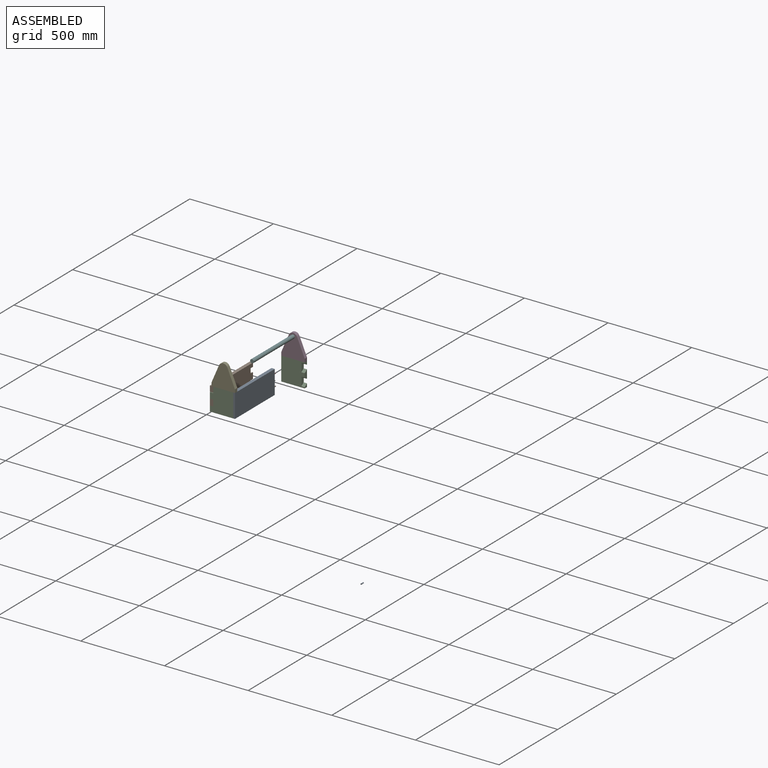
[diagram: assembled view]
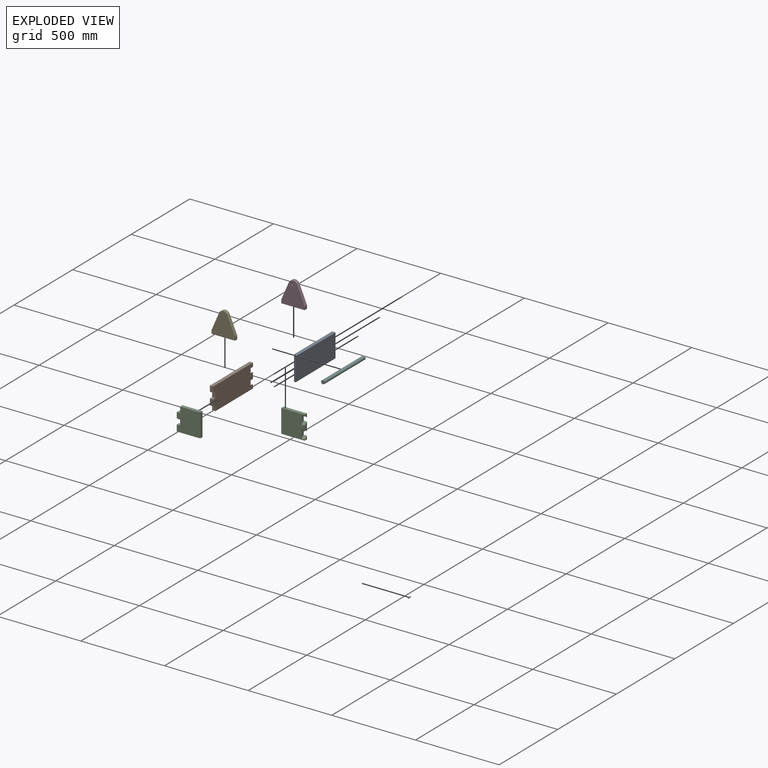
[diagram: exploded view]
GUIDED TOUR — MATED ASSEMBLY (Onshape document f731a02bd5e9c992d7287a58, AutoMate assembly f731a02bd5e9c992d7287a58_3853195bb8e3465ea0b610a6_fbe72c8abadcbdca8d0ad2a1_default)

This assembly has 11 components, labeled P0..P10 below (a component is one placed occurrence of a part; the same part can appear more than once), held together by 8 mates. A mate is a constraint between two components; its type names the relative motion it leaves free:
  FASTENED — locks the two components together rigidly (no relative motion).
Axis/direction vectors are unit vectors and 'through' points are millimeter coordinates, both in the assembly's world frame.

MATES
  1. FASTENED "Fastened 7": P6 <-> P0, direction (0.000, -1.000, 0.000) through (-1562.97, 940.39, 246.42) mm
  2. FASTENED "Fastened 8": P1 <-> P2, direction (0.000, 0.000, 1.000) through (-1692.97, 615.39, 246.42) mm
  3. FASTENED "Fastened 4": P9 <-> P0, direction (0.000, -1.000, 0.000) through (-1562.97, 945.39, 214.05) mm
  4. FASTENED "Fastened 1": P0 <-> P2, direction (-1.000, 0.000, 0.000) through (-1562.97, 615.39, 246.42) mm
  5. FASTENED "Fastened 6": P5 <-> P3, direction (0.000, 1.000, 0.000) through (-1146.64, 520.46, 762.72) mm
  6. FASTENED "Fastened 3": P7 <-> P0, direction (0.000, -1.000, 0.000) through (-1562.97, 945.39, 284.05) mm
  7. FASTENED "Fastened 5": P3 <-> P10, direction (0.000, 0.000, -1.000) through (-1146.64, 530.46, 641.14) mm
  8. FASTENED "Fastened 2": P4 <-> P2, direction (0.000, 0.000, -1.000) through (-1622.97, 615.39, 316.42) mm

ASSEMBLY ORDER
  1. P1 — the base component [order verified]
  2. P2 [order verified]
  3. P0 [order verified]
  4. P9 [order verified]
  5. P6 [order verified]
  6. P7 [order verified]
  7. P4 [order verified]
  8. P10 [order verified]
  9. P3 [order verified]
  10. P5 [order verified]
  11. P8 [order verified]
Order-tag legend:
  [order verified] — this step's position reverses a verified removal order: the component was checked to insert without passing through the ones already placed.

Of the 11 components, 9 carry the full construction recipe — the FeatureScript program that regenerates the part's solid from scratch; the rest are supplied as boundary geometry only.
Each toured component is shown spotlighted twice — in the assembled view, then in the exploded view, where a leader line traces a displaced component back to its assembled socket (saturated green if recipe-attached, orange if geometry-only; every other component desaturated gray) — followed by its recipe or geometry summary and the mates that hold it.
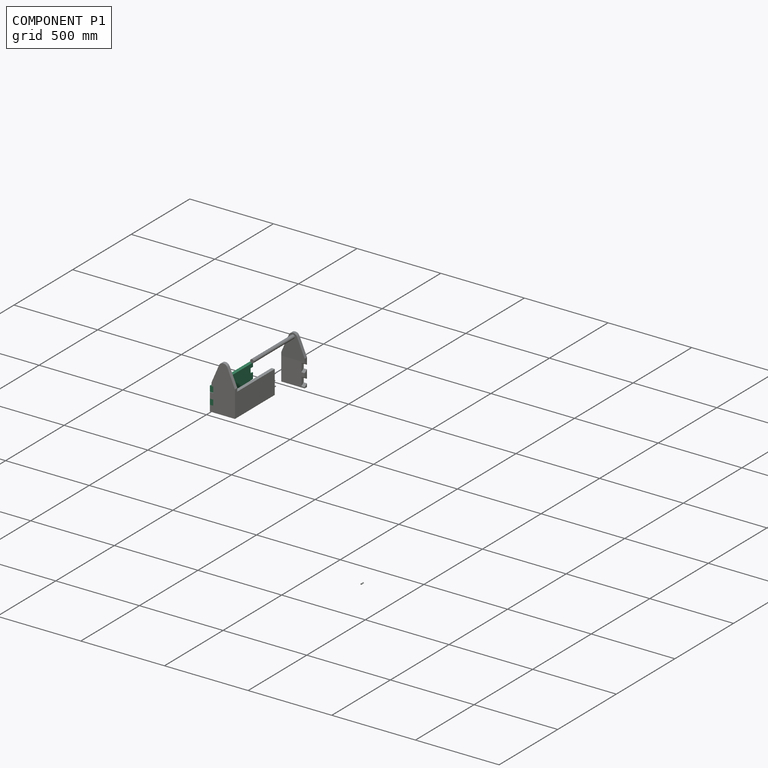
[diagram: component P1 — assembled]
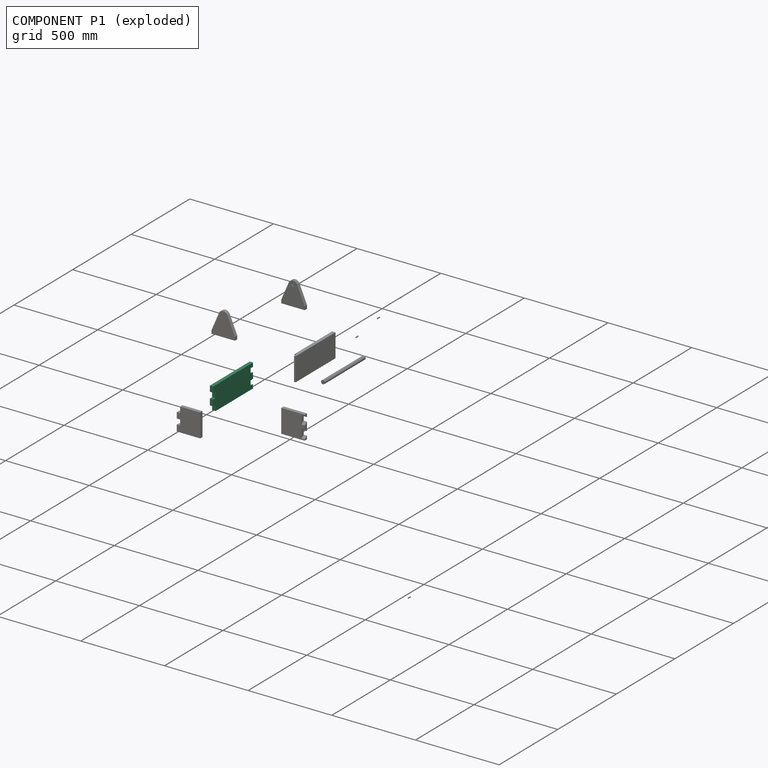
[diagram: component P1 — exploded]
COMPONENT P1 — recipe-attached (CADFS 00567355, mesh-verified: the recipe's output STEP matches this component's geometry to below the mesh-comparison resolution (tessellation chordal tolerance ~0.552 mm)).
Held by: FASTENED mate "Fastened 8" to P2.
Construction recipe (FeatureScript — the CAD program that rebuilds this solid; sketch coordinates are in the units given by the * unit suffixes, e.g. mm):

FeatureScript 1511;
import(path : "onshape/std/geometry.fs", version : "1511.0");
import(path : "onshape/std/common.fs", version : "1511.0");
const mm = millimeter;
const VERTEX = EntityType.VERTEX;
const EDGE = EntityType.EDGE;
const FACE = EntityType.FACE;
const BODY = EntityType.BODY;
function v(x, y){return vector(x, y);}
function OD(order){return orderDisambiguation(order);}
function OSD(set){return originalSetDisambiguation(set);}
function TD(topology){return topologyDisambiguation(topology);}
function TDD(query){return trueDependencyDisambiguation(query);}
function sQuery(a, b, c) {return sketchEntityQuery(a, b, c);}

annotation { "Feature Type Name" : "Feature", "Feature Type Description" : "" }
export const myFeature = defineFeature(function(context is Context, id is Id, definition is map)
    precondition{}
    {
        {
            var Q0;
            Q0=qCreatedBy(makeId("Front.planeOp"),FACE);
            var sketch = newSketch(context, id + "F0", { "sketchPlane" : qUnion([Q0])});
            skLineSegment(sketch, "E0.bottom", {"start": v(-199.46, 107.23) * mm, "end": v(140.54, 107.23) * mm});
            skLineSegment(sketch, "E0.top", {"start": v(-179.46, -32.77) * mm, "end": v(140.54, -32.77) * mm});
            skLineSegment(sketch, "E0.right", {"start": v(140.54, 107.23) * mm, "end": v(140.54, -32.77) * mm});
            skLineSegment(sketch, "E1.bottom", {"start": v(-199.46, 107.23) * mm, "end": v(-179.46, 107.23) * mm});
            skLineSegment(sketch, "E1.left", {"start": v(-199.46, 107.23) * mm, "end": v(-199.46, 74.17) * mm});
            skLineSegment(sketch, "E2.bottom", {"start": v(-199.46, 0) * mm, "end": v(-179.46, 0) * mm});
            skLineSegment(sketch, "E2.right", {"start": v(-179.46, 0) * mm, "end": v(-179.46, -32.77) * mm});
            skLineSegment(sketch, "E3.bottom", {"start": v(-199.46, 37.23) * mm, "end": v(-179.46, 37.23) * mm});
            skLineSegment(sketch, "E3.left", {"start": v(-199.46, 37.23) * mm, "end": v(-199.46, 0) * mm});
            skLineSegment(sketch, "E4.bottom", {"start": v(-199.46, 74.17) * mm, "end": v(-179.46, 74.17) * mm});
            skLineSegment(sketch, "E4.right", {"start": v(-179.46, 74.17) * mm, "end": v(-179.46, 37.23) * mm});
            skPoint(sketch, "E5.orphan", {"position": v(-199.46, -32.77) * mm});
            skLineSegment(sketch, "E6", {"start": v(-179.46, 37.23) * mm, "end": v(-179.46, 0) * mm});
            skLineSegment(sketch, "E7", {"start": v(-179.46, 18.62) * mm, "end": v(-199.46, 18.62) * mm});
            skPoint(sketch, "E8", {"position": v(-189.46, 18.62) * mm});
            skSolve(sketch);
        }
        {
            var Q0;
            Q0=makeQuery(id+"F0.imprint","IMPRINT",FACE,{"disambiguationData":[TD([[makeQuery(id+"F0.imprint","IMPRINT",EDGE,{"derivedFrom":sQuery(id+"F0.wireOp",EDGE,"E0.bottom")}),-1.0]])]});
            var Q1;
            {var subQ0=sQuery(id+"F0.wireOp",EDGE,"E3.bottom");Q1=makeQuery(id+"F0.imprint","IMPRINT",FACE,{"disambiguationData":[TD([[makeQuery(id+"F0.imprint","IMPRINT",EDGE,{"derivedFrom":subQ0}),-1.0]])]});}
            var Q2;
            {var subQ0=sQuery(id+"F0.wireOp",EDGE,"E2.bottom");Q2=makeQuery(id+"F0.imprint","IMPRINT",FACE,{"disambiguationData":[TD([[makeQuery(id+"F0.imprint","IMPRINT",EDGE,{"derivedFrom":subQ0}),1.0]])]});}
            extrude(context, id + "F1", {"entities" : qUnion([Q0, Q1, Q2]), "depth" : 20 * mm, "offsetDistance" : 25.4 * mm});
        }
        {
            var Q0;
            Q0=makeQuery(id+"F1.opExtrude","SWEPT_FACE",FACE,{"disambiguationData":[OSD([sQuery(id+"F0.wireOp",EDGE,"E0.right")])]});
            var sketch = newSketch(context, id + "F2", { "sketchPlane" : qUnion([Q0])});
            skLineSegment(sketch, "E9", {"start": v(-20, 37.23) * mm, "end": v(0, 37.23) * mm});
            skLineSegment(sketch, "E10", {"start": v(-20, -9.68) * mm, "end": v(0, -19.14) * mm});
            skLineSegment(sketch, "E11", {"start": v(-20, 19.13) * mm, "end": v(0, 28.15) * mm});
            skLineSegment(sketch, "E12.MirrorCS", {"start": v(-20, 55.34) * mm, "end": v(0, 46.3) * mm});
            skLineSegment(sketch, "E13.MirrorCS", {"start": v(-20, 84.14) * mm, "end": v(0, 93.6) * mm});
            skSolve(sketch);
        }
        {
            var Q0;
            {var subQ0=sQuery(id+"F2.wireOp",EDGE,"E12.MirrorCS");Q0=makeQuery(id+"F2.imprint","IMPRINT",FACE,{"disambiguationData":[TD([[makeQuery(id+"F2.imprint","IMPRINT",EDGE,{"derivedFrom":subQ0}),1.0]])]});}
            var Q1;
            {var subQ0=sQuery(id+"F2.wireOp",EDGE,"E10");Q1=makeQuery(id+"F2.imprint","IMPRINT",FACE,{"disambiguationData":[TD([[makeQuery(id+"F2.imprint","IMPRINT",EDGE,{"derivedFrom":subQ0}),1.0]])]});}
            extrude(context, id + "F3", {"entities" : qUnion([Q0, Q1]), "operationType" : NewBodyOperationType.REMOVE, "oppositeDirection" : true, "depth" : 20 * mm, "offsetDistance" : 25 * mm});
        }
    });
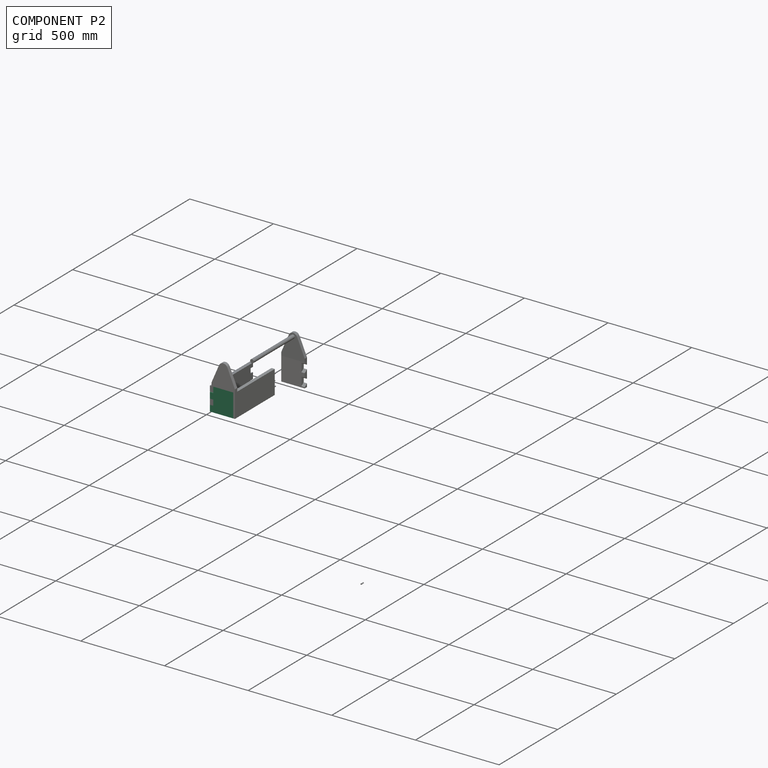
[diagram: component P2 — assembled]
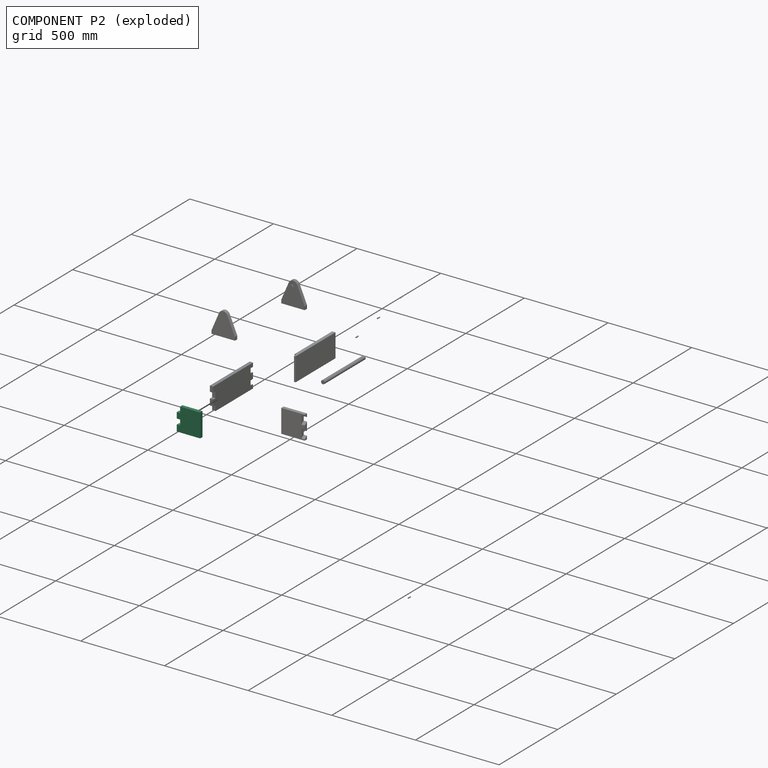
[diagram: component P2 — exploded]
COMPONENT P2 — recipe-attached (CADFS 00567359, mesh-verified: the recipe's output STEP matches this component's geometry to below the mesh-comparison resolution (tessellation chordal tolerance ~0.298 mm)).
Held by: FASTENED mate "Fastened 8" to P1; FASTENED mate "Fastened 1" to P0; FASTENED mate "Fastened 2" to P4.
Construction recipe (FeatureScript — the CAD program that rebuilds this solid; sketch coordinates are in the units given by the * unit suffixes, e.g. mm):

FeatureScript 1511;
import(path : "onshape/std/geometry.fs", version : "1511.0");
import(path : "onshape/std/common.fs", version : "1511.0");
const mm = millimeter;
const VERTEX = EntityType.VERTEX;
const EDGE = EntityType.EDGE;
const FACE = EntityType.FACE;
const BODY = EntityType.BODY;
function v(x, y){return vector(x, y);}
function OD(order){return orderDisambiguation(order);}
function OSD(set){return originalSetDisambiguation(set);}
function TD(topology){return topologyDisambiguation(topology);}
function TDD(query){return trueDependencyDisambiguation(query);}
function sQuery(a, b, c) {return sketchEntityQuery(a, b, c);}

annotation { "Feature Type Name" : "Feature", "Feature Type Description" : "" }
export const myFeature = defineFeature(function(context is Context, id is Id, definition is map)
    precondition{}
    {
        {
            var Q0;
            Q0=qCreatedBy(makeId("Right.planeOp"),FACE);
            var sketch = newSketch(context, id + "F0", { "sketchPlane" : qUnion([Q0])});
            skLineSegment(sketch, "E0.bottom", {"start": v(-128.86, 140) * mm, "end": v(-8.86, 140) * mm});
            skLineSegment(sketch, "E0.top", {"start": v(-148.86, 0) * mm, "end": v(-8.86, 0) * mm});
            skLineSegment(sketch, "E0.left", {"start": v(-148.86, 104.9) * mm, "end": v(-148.86, 70) * mm});
            skLineSegment(sketch, "E0.right", {"start": v(-8.86, 140) * mm, "end": v(-8.86, 0) * mm});
            skLineSegment(sketch, "E1.top", {"start": v(-148.86, 0) * mm, "end": v(-128.86, 0) * mm});
            skLineSegment(sketch, "E1.right", {"start": v(-128.86, 140) * mm, "end": v(-128.86, 104.9) * mm});
            skLineSegment(sketch, "E2.top", {"start": v(-148.86, 104.9) * mm, "end": v(-128.86, 104.9) * mm});
            skLineSegment(sketch, "E3.top", {"start": v(-148.86, 70) * mm, "end": v(-128.86, 70) * mm});
            skLineSegment(sketch, "E4.top", {"start": v(-148.86, 37.38) * mm, "end": v(-128.86, 37.38) * mm});
            skLineSegment(sketch, "E4.right", {"start": v(-128.86, 70) * mm, "end": v(-128.86, 37.38) * mm});
            skLineSegment(sketch, "E5.trimOffspring", {"start": v(-148.86, 37.38) * mm, "end": v(-148.86, 0) * mm});
            skSolve(sketch);
        }
        {
            var Q0;
            Q0 = qSketchRegion(id + "F0", true);
            extrude(context, id + "F1", {"entities" : qUnion([Q0]), "depth" : 20 * mm, "offsetDistance" : 25.4 * mm});
        }
    });
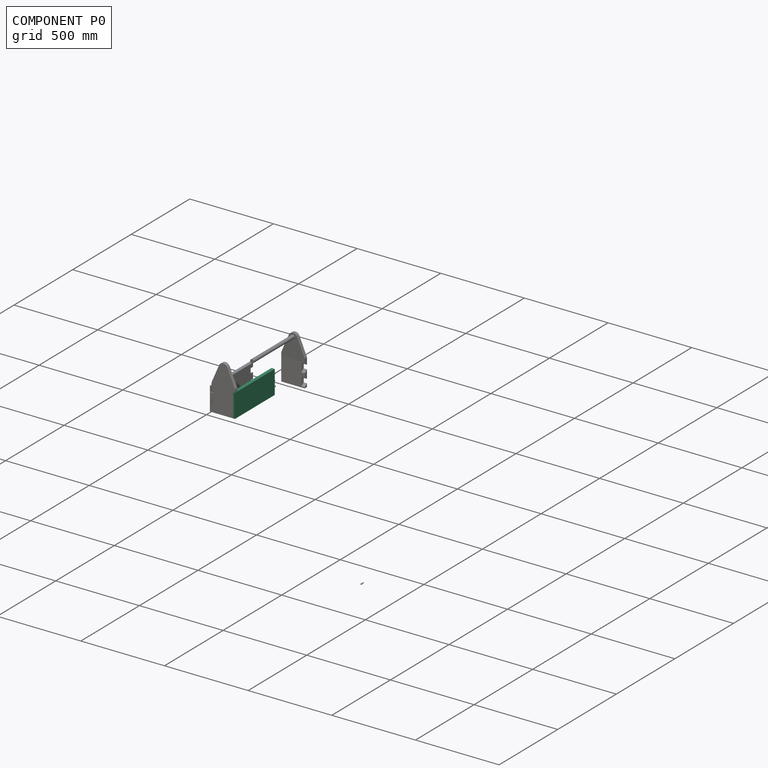
[diagram: component P0 — assembled]
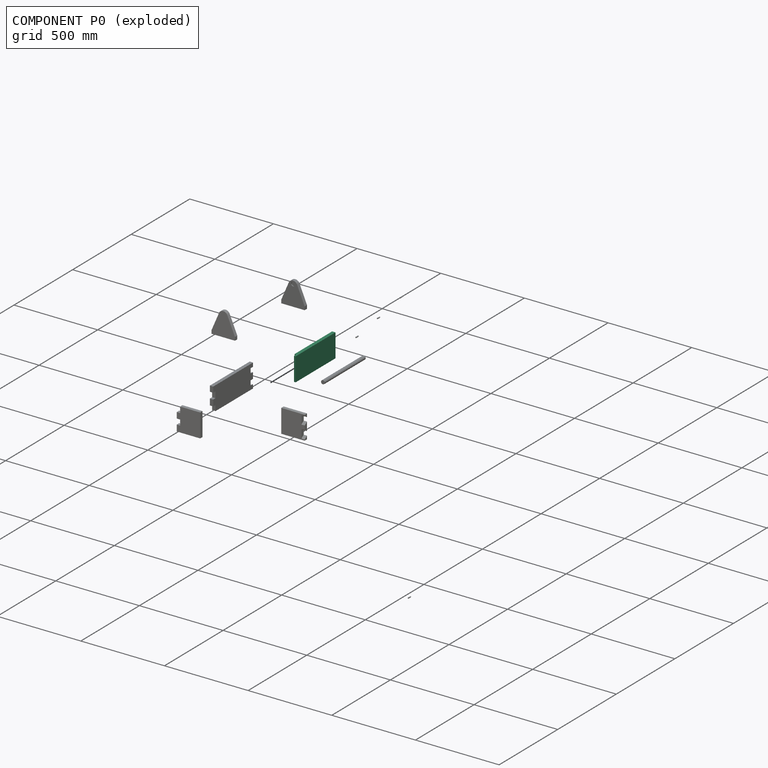
[diagram: component P0 — exploded]
COMPONENT P0 — recipe-attached (CADFS 00567360, mesh-verified: the recipe's output STEP matches this component's geometry to below the mesh-comparison resolution (tessellation chordal tolerance ~0.552 mm)).
Held by: FASTENED mate "Fastened 7" to P6; FASTENED mate "Fastened 4" to P9; FASTENED mate "Fastened 1" to P2; FASTENED mate "Fastened 3" to P7.
Construction recipe (FeatureScript — the CAD program that rebuilds this solid; sketch coordinates are in the units given by the * unit suffixes, e.g. mm):

FeatureScript 1511;
import(path : "onshape/std/geometry.fs", version : "1511.0");
import(path : "onshape/std/common.fs", version : "1511.0");
const mm = millimeter;
const VERTEX = EntityType.VERTEX;
const EDGE = EntityType.EDGE;
const FACE = EntityType.FACE;
const BODY = EntityType.BODY;
function v(x, y){return vector(x, y);}
function OD(order){return orderDisambiguation(order);}
function OSD(set){return originalSetDisambiguation(set);}
function TD(topology){return topologyDisambiguation(topology);}
function TDD(query){return trueDependencyDisambiguation(query);}
function sQuery(a, b, c) {return sketchEntityQuery(a, b, c);}

annotation { "Feature Type Name" : "Feature", "Feature Type Description" : "" }
export const myFeature = defineFeature(function(context is Context, id is Id, definition is map)
    precondition{}
    {
        {
            var Q0;
            Q0=qCreatedBy(makeId("Front.planeOp"),FACE);
            var sketch = newSketch(context, id + "F0", { "sketchPlane" : qUnion([Q0])});
            skLineSegment(sketch, "E0.bottom", {"start": v(-340, 140) * mm, "end": v(0, 140) * mm});
            skLineSegment(sketch, "E0.top", {"start": v(-340, 0) * mm, "end": v(0, 0) * mm});
            skLineSegment(sketch, "E0.left", {"start": v(-340, 140) * mm, "end": v(-340, 0) * mm});
            skLineSegment(sketch, "E0.right", {"start": v(0, 140) * mm, "end": v(0, 0) * mm});
            skLineSegment(sketch, "E1.bottom", {"start": v(-340, 140) * mm, "end": v(-320, 140) * mm});
            skLineSegment(sketch, "E1.top", {"start": v(-340, 0) * mm, "end": v(-320, 0) * mm});
            skLineSegment(sketch, "E1.right", {"start": v(-320, 140) * mm, "end": v(-320, 0) * mm});
            skSolve(sketch);
        }
        {
            var Q0;
            Q0 = qSketchRegion(id + "F0", true);
            var Q1;
            Q1=makeQuery(id+"F0.imprint","IMPRINT",FACE,{"disambiguationData":[TD([[makeQuery(id+"F0.imprint","IMPRINT",EDGE,{"derivedFrom":sQuery(id+"F0.wireOp",EDGE,"E0.bottom")}),-1.0]])]});
            extrude(context, id + "F1", {"entities" : qUnion([Q0, Q1]), "depth" : 20 * mm, "offsetDistance" : 25 * mm});
        }
        {
            var Q0;
            Q0=makeQuery(id+"F1.opExtrude","SWEPT_FACE",FACE,{"disambiguationData":[OSD([sQuery(id+"F0.wireOp",EDGE,"E0.right")])]});
            var sketch = newSketch(context, id + "F2", { "sketchPlane" : qUnion([Q0])});
            skLineSegment(sketch, "E2.bottom", {"start": v(-20, 140) * mm, "end": v(-10, 140) * mm});
            skLineSegment(sketch, "E2.top", {"start": v(-20, 0) * mm, "end": v(-10, 0) * mm});
            skLineSegment(sketch, "E2.left", {"start": v(-20, 140) * mm, "end": v(-20, 0) * mm});
            skLineSegment(sketch, "E2.right", {"start": v(-10, 140) * mm, "end": v(-10, 0) * mm});
            skSolve(sketch);
        }
        {
            var Q0;
            Q0=makeQuery(id+"F2.imprint","IMPRINT",FACE,{"disambiguationData":[TD([[makeQuery(id+"F2.imprint","IMPRINT",EDGE,{"derivedFrom":sQuery(id+"F2.wireOp",EDGE,"E2.bottom")}),-1.0]])]});
            extrude(context, id + "F3", {"entities" : qUnion([Q0]), "operationType" : NewBodyOperationType.REMOVE, "oppositeDirection" : true, "depth" : 20 * mm, "offsetDistance" : 25 * mm});
        }
        {
            var Q0;
            Q0=makeQuery(id+"F1.opExtrude","SWEPT_FACE",FACE,{"disambiguationData":[OSD([sQuery(id+"F0.wireOp",EDGE,"E0.left")])]});
            var sketch = newSketch(context, id + "F4", { "sketchPlane" : qUnion([Q0])});
            skLineSegment(sketch, "E3.bottom", {"start": v(0, 140) * mm, "end": v(20, 140) * mm});
            skLineSegment(sketch, "E3.left", {"start": v(0, 140) * mm, "end": v(0, 75.25) * mm});
            skLineSegment(sketch, "E3.right", {"start": v(20, 140) * mm, "end": v(20, 75.25) * mm});
            skLineSegment(sketch, "E4.bottom", {"start": v(20, 0) * mm, "end": v(0, 0) * mm});
            skLineSegment(sketch, "E4.right", {"start": v(0, 0) * mm, "end": v(0, 75.25) * mm});
            skLineSegment(sketch, "E5", {"start": v(20, 140) * mm, "end": v(20, 70) * mm});
            skLineSegment(sketch, "E6", {"start": v(20, 70) * mm, "end": v(0, 70) * mm});
            skLineSegment(sketch, "E7", {"start": v(0, 70) * mm, "end": v(0, 107.63) * mm});
            skLineSegment(sketch, "E8", {"start": v(0, 107.63) * mm, "end": v(20, 107.63) * mm});
            skLineSegment(sketch, "E9", {"start": v(0, 70) * mm, "end": v(0, 37.63) * mm});
            skLineSegment(sketch, "E10", {"start": v(0, 37.63) * mm, "end": v(20, 37.63) * mm});
            skCircle(sketch, "E11", {"center": v(10, 107.63) * mm, "radius": 5 * mm});
            skCircle(sketch, "E12", {"center": v(10, 70) * mm, "radius": 5 * mm});
            skCircle(sketch, "E13", {"center": v(10, 37.63) * mm, "radius": 5 * mm});
            skSolve(sketch);
        }
        {
            var Q0;
            {var subQ0=sQuery(id+"F4.wireOp",EDGE,"E13");var subQ1=sQuery(id+"F4.wireOp",EDGE,"E10");var subQ2=makeQuery(id+"F4.imprint","INTERSECT",VERTEX,{"disambiguationData":[OD(0.0)],"derivedFrom":[subQ1,subQ0]});Q0=makeQuery(id+"F4.imprint","IMPRINT",FACE,{"disambiguationData":[TD([[makeQuery(id+"F4.imprint","IMPRINT",EDGE,{"disambiguationData":[TD([[subQ2,-1.0]])],"derivedFrom":subQ1}),1.0]])]});}
            var Q1;
            {var subQ0=sQuery(id+"F4.wireOp",EDGE,"E13");var subQ1=sQuery(id+"F4.wireOp",EDGE,"E10");var subQ2=makeQuery(id+"F4.imprint","INTERSECT",VERTEX,{"disambiguationData":[OD(0.0)],"derivedFrom":[subQ1,subQ0]});Q1=makeQuery(id+"F4.imprint","IMPRINT",FACE,{"disambiguationData":[TD([[makeQuery(id+"F4.imprint","IMPRINT",EDGE,{"disambiguationData":[TD([[subQ2,-1.0]])],"derivedFrom":subQ1}),-1.0]])]});}
            var Q2;
            {var subQ0=sQuery(id+"F4.wireOp",EDGE,"E11");var subQ1=sQuery(id+"F4.wireOp",EDGE,"E8");var subQ2=makeQuery(id+"F4.imprint","INTERSECT",VERTEX,{"disambiguationData":[OD(0.0)],"derivedFrom":[subQ1,subQ0]});Q2=makeQuery(id+"F4.imprint","IMPRINT",FACE,{"disambiguationData":[TD([[makeQuery(id+"F4.imprint","IMPRINT",EDGE,{"disambiguationData":[TD([[subQ2,-1.0]])],"derivedFrom":subQ1}),1.0]])]});}
            var Q3;
            {var subQ0=sQuery(id+"F4.wireOp",EDGE,"E11");var subQ1=sQuery(id+"F4.wireOp",EDGE,"E8");var subQ2=makeQuery(id+"F4.imprint","INTERSECT",VERTEX,{"disambiguationData":[OD(0.0)],"derivedFrom":[subQ1,subQ0]});Q3=makeQuery(id+"F4.imprint","IMPRINT",FACE,{"disambiguationData":[TD([[makeQuery(id+"F4.imprint","IMPRINT",EDGE,{"disambiguationData":[TD([[subQ2,-1.0]])],"derivedFrom":subQ1}),-1.0]])]});}
            var Q4;
            {var subQ0=sQuery(id+"F4.wireOp",EDGE,"E12");var subQ1=sQuery(id+"F4.wireOp",EDGE,"E6");var subQ2=makeQuery(id+"F4.imprint","INTERSECT",VERTEX,{"disambiguationData":[OD(0.0)],"derivedFrom":[subQ1,subQ0]});Q4=makeQuery(id+"F4.imprint","IMPRINT",FACE,{"disambiguationData":[TD([[makeQuery(id+"F4.imprint","IMPRINT",EDGE,{"disambiguationData":[TD([[subQ2,-1.0]])],"derivedFrom":subQ1}),1.0]])]});}
            var Q5;
            {var subQ0=sQuery(id+"F4.wireOp",EDGE,"E12");var subQ1=sQuery(id+"F4.wireOp",EDGE,"E6");var subQ2=makeQuery(id+"F4.imprint","INTERSECT",VERTEX,{"disambiguationData":[OD(0.0)],"derivedFrom":[subQ1,subQ0]});Q5=makeQuery(id+"F4.imprint","IMPRINT",FACE,{"disambiguationData":[TD([[makeQuery(id+"F4.imprint","IMPRINT",EDGE,{"disambiguationData":[TD([[subQ2,-1.0]])],"derivedFrom":subQ1}),-1.0]])]});}
            extrude(context, id + "F5", {"entities" : qUnion([Q0, Q1, Q2, Q3, Q4, Q5]), "operationType" : NewBodyOperationType.REMOVE, "oppositeDirection" : true, "depth" : 10 * mm, "offsetDistance" : 25 * mm});
        }
    });
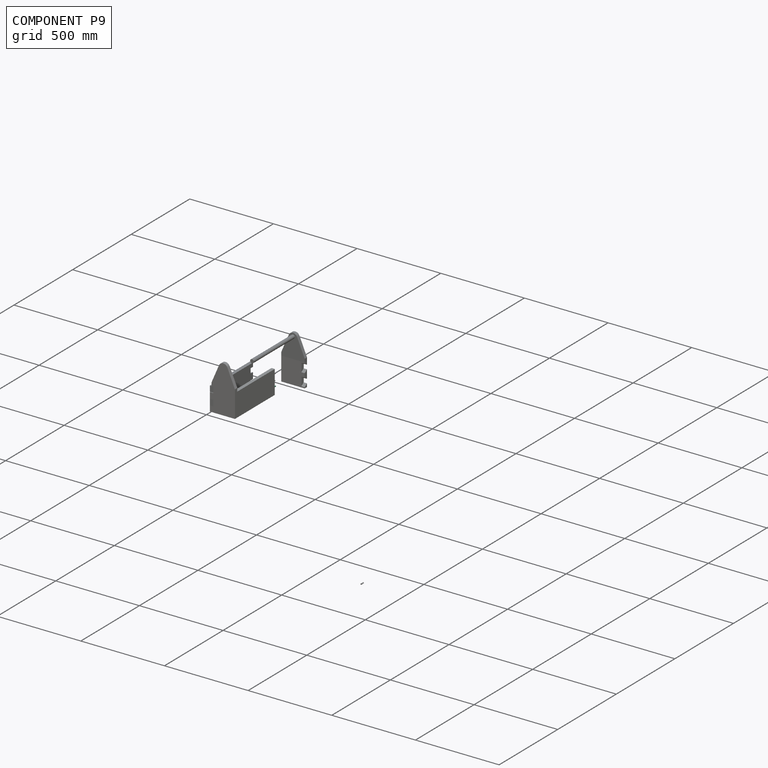
[diagram: component P9 — assembled]
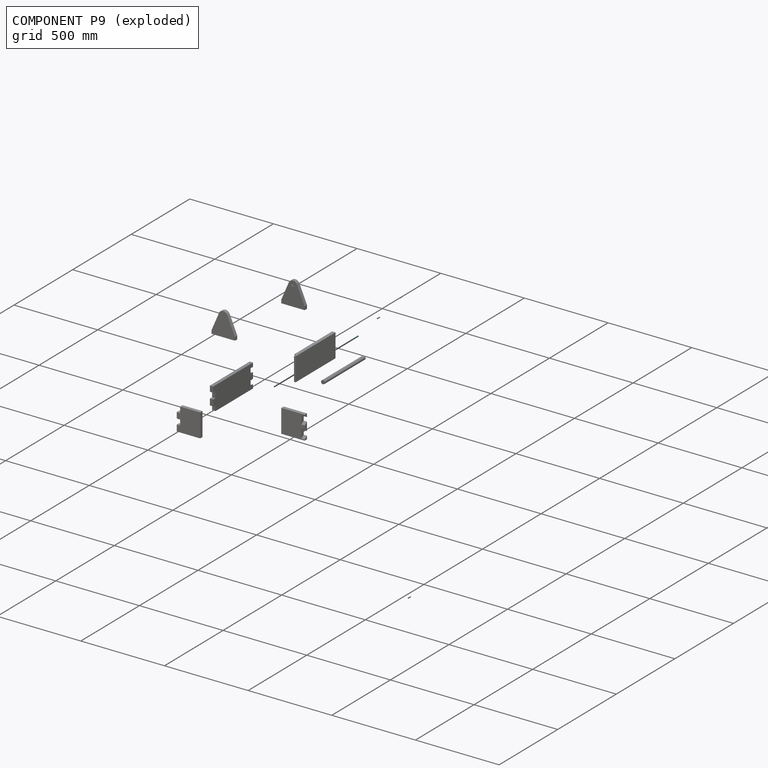
[diagram: component P9 — exploded]
COMPONENT P9 — same part as P6 (CADFS 00567358); its construction recipe is shown at P6.
Held by: FASTENED mate "Fastened 4" to P0.
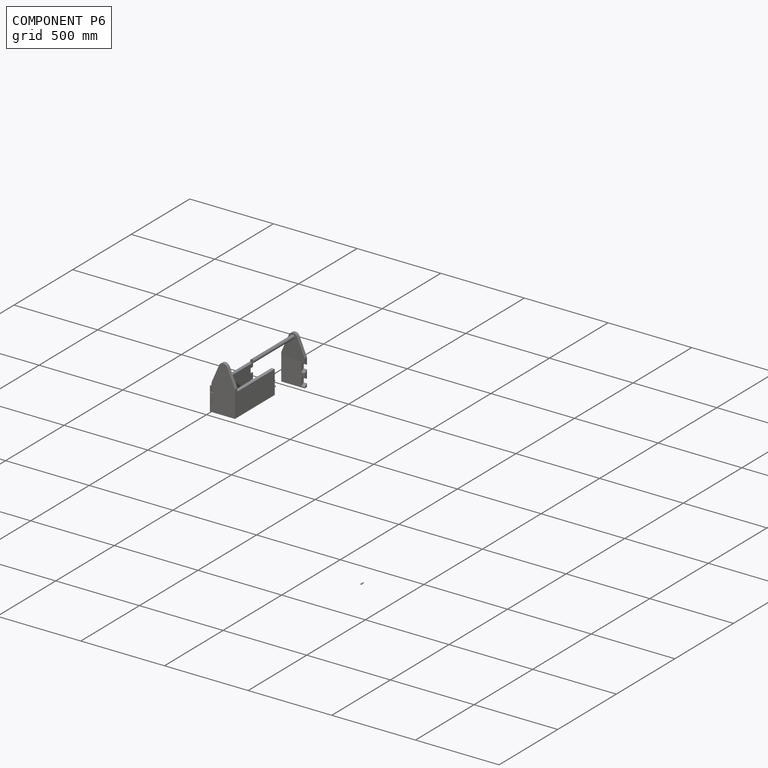
[diagram: component P6 — assembled]
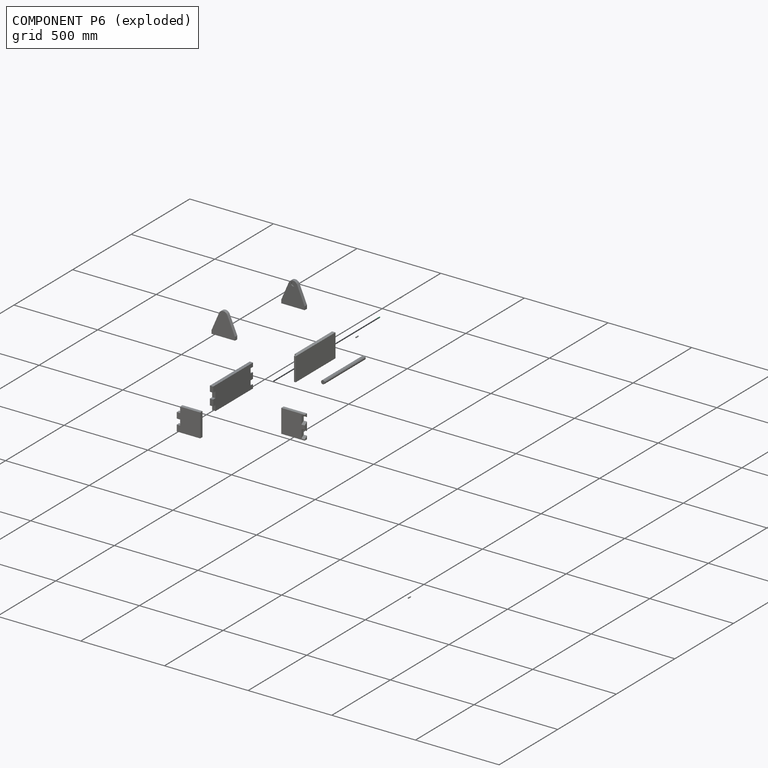
[diagram: component P6 — exploded]
COMPONENT P6 — recipe-attached (CADFS 00567358, mesh-verified: the recipe's output STEP matches this component's geometry to below the mesh-comparison resolution (tessellation chordal tolerance ~0.0329 mm)).
Held by: FASTENED mate "Fastened 7" to P0.
Construction recipe (FeatureScript — the CAD program that rebuilds this solid; sketch coordinates are in the units given by the * unit suffixes, e.g. mm):

FeatureScript 1511;
import(path : "onshape/std/geometry.fs", version : "1511.0");
import(path : "onshape/std/common.fs", version : "1511.0");
const mm = millimeter;
const VERTEX = EntityType.VERTEX;
const EDGE = EntityType.EDGE;
const FACE = EntityType.FACE;
const BODY = EntityType.BODY;
function v(x, y){return vector(x, y);}
function OD(order){return orderDisambiguation(order);}
function OSD(set){return originalSetDisambiguation(set);}
function TD(topology){return topologyDisambiguation(topology);}
function TDD(query){return trueDependencyDisambiguation(query);}
function sQuery(a, b, c) {return sketchEntityQuery(a, b, c);}

annotation { "Feature Type Name" : "Feature", "Feature Type Description" : "" }
export const myFeature = defineFeature(function(context is Context, id is Id, definition is map)
    precondition{}
    {
        {
            var Q0;
            Q0=qCreatedBy(makeId("Front.planeOp"),FACE);
            var sketch = newSketch(context, id + "F0", { "sketchPlane" : qUnion([Q0])});
            skCircle(sketch, "E0", {"center": v(0, 0) * mm, "radius": 3.18 * mm});
            skSolve(sketch);
        }
        {
            var Q0;
            Q0 = qSketchRegion(id + "F0", true);
            extrude(context, id + "F1", {"entities" : qUnion([Q0]), "depth" : 20 * mm, "offsetDistance" : 25 * mm});
        }
    });
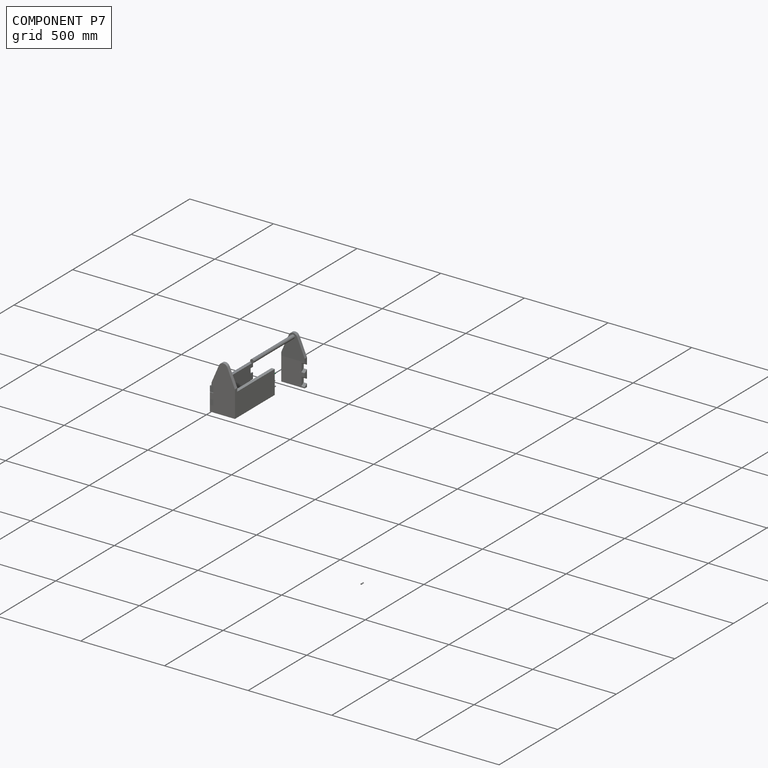
[diagram: component P7 — assembled]
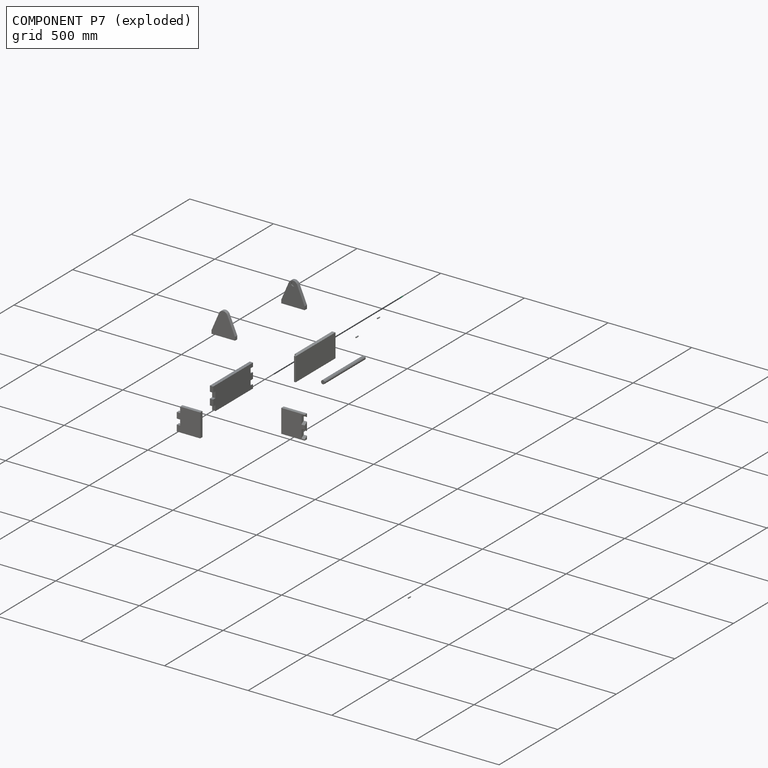
[diagram: component P7 — exploded]
COMPONENT P7 — same part as P6 (CADFS 00567358); its construction recipe is shown at P6.
Held by: FASTENED mate "Fastened 3" to P0.
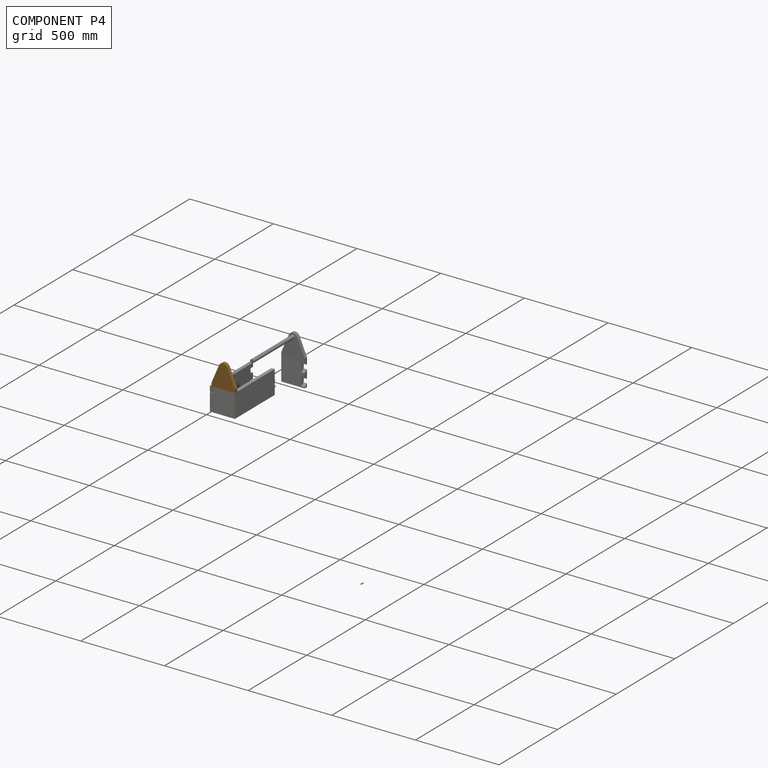
[diagram: component P4 — assembled]
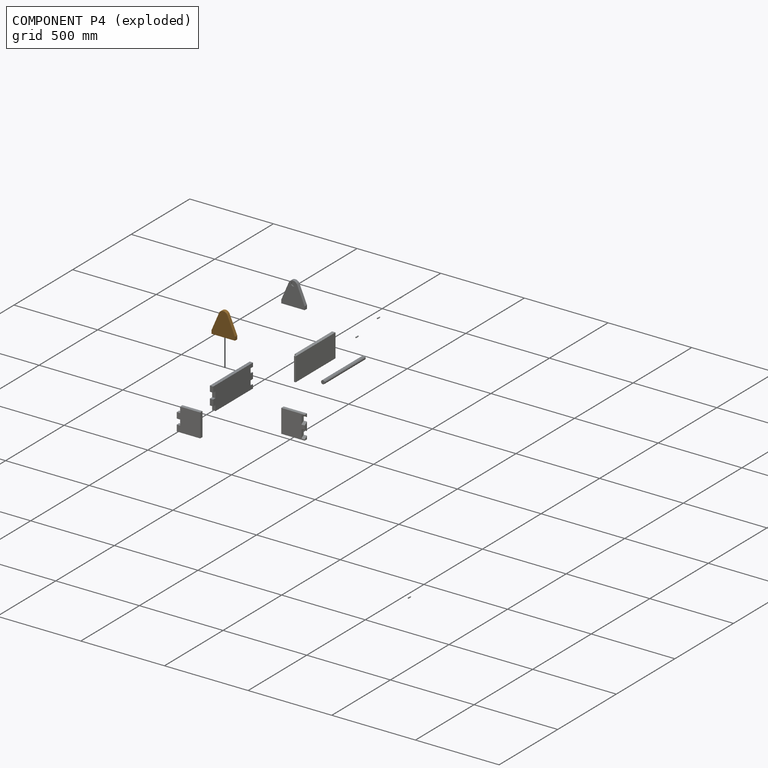
[diagram: component P4 — exploded]
COMPONENT P4 — geometry summary (no construction recipe available for this part):
  bounding box: 141.6 x 140.0 x 20.0 mm
  B-rep topology: 1 solid, 10 faces, 42 edges
  volume: 265570 mm^3 (67% of its bounding box)
  symmetry: mirror-symmetric across its x mid-plane
Held by: FASTENED mate "Fastened 2" to P2.
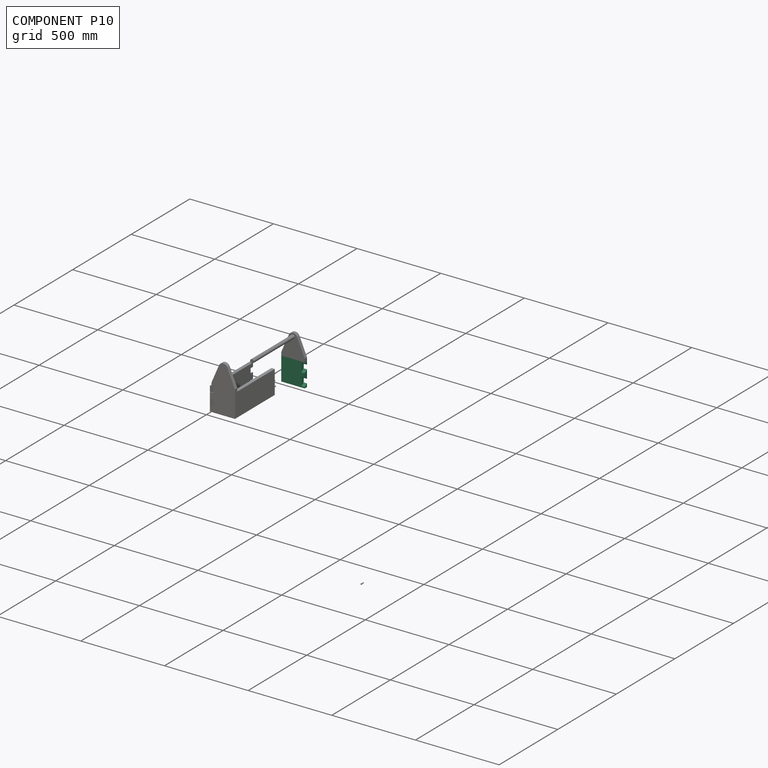
[diagram: component P10 — assembled]
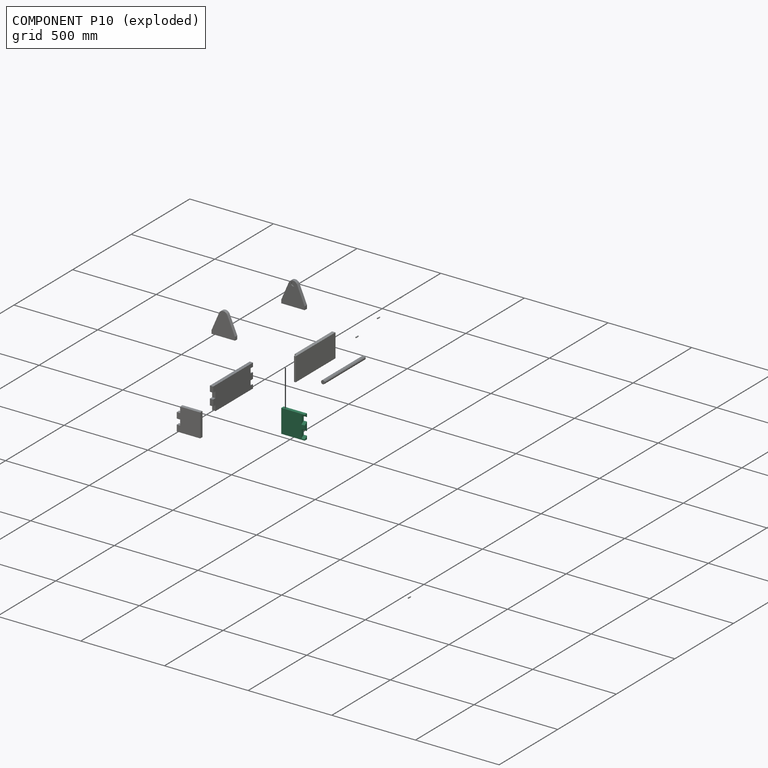
[diagram: component P10 — exploded]
COMPONENT P10 — recipe-attached (CADFS 00567361, mesh-verified: the recipe's output STEP matches this component's geometry to below the mesh-comparison resolution (tessellation chordal tolerance ~0.298 mm)).
Held by: FASTENED mate "Fastened 5" to P3.
Construction recipe (FeatureScript — the CAD program that rebuilds this solid; sketch coordinates are in the units given by the * unit suffixes, e.g. mm):

FeatureScript 1511;
import(path : "onshape/std/geometry.fs", version : "1511.0");
import(path : "onshape/std/common.fs", version : "1511.0");
const mm = millimeter;
const VERTEX = EntityType.VERTEX;
const EDGE = EntityType.EDGE;
const FACE = EntityType.FACE;
const BODY = EntityType.BODY;
function v(x, y){return vector(x, y);}
function OD(order){return orderDisambiguation(order);}
function OSD(set){return originalSetDisambiguation(set);}
function TD(topology){return topologyDisambiguation(topology);}
function TDD(query){return trueDependencyDisambiguation(query);}
function sQuery(a, b, c) {return sketchEntityQuery(a, b, c);}

annotation { "Feature Type Name" : "Feature", "Feature Type Description" : "" }
export const myFeature = defineFeature(function(context is Context, id is Id, definition is map)
    precondition{}
    {
        {
            var Q0;
            Q0=qCreatedBy(makeId("Front.planeOp"),FACE);
            var sketch = newSketch(context, id + "F0", { "sketchPlane" : qUnion([Q0])});
            skLineSegment(sketch, "E0.bottom", {"start": v(-140, 140) * mm, "end": v(0, 140) * mm});
            skLineSegment(sketch, "E0.top", {"start": v(-140, 0) * mm, "end": v(0, 0) * mm});
            skLineSegment(sketch, "E0.left", {"start": v(-140, 140) * mm, "end": v(-140, 0) * mm});
            skLineSegment(sketch, "E0.right", {"start": v(0, 140) * mm, "end": v(0, 0) * mm});
            skLineSegment(sketch, "E1.bottom", {"start": v(-140, 140) * mm, "end": v(-120, 140) * mm});
            skLineSegment(sketch, "E1.top", {"start": v(-140, 0) * mm, "end": v(-120, 0) * mm});
            skLineSegment(sketch, "E1.right", {"start": v(-120, 140) * mm, "end": v(-120, 0) * mm});
            skSolve(sketch);
        }
        {
            var Q0;
            Q0=makeQuery(id+"F0.imprint","IMPRINT",FACE,{"disambiguationData":[TD([[makeQuery(id+"F0.imprint","IMPRINT",EDGE,{"derivedFrom":sQuery(id+"F0.wireOp",EDGE,"E0.bottom")}),-1.0]])]});
            var Q1;
            Q1=makeQuery(id+"F0.imprint","IMPRINT",FACE,{"disambiguationData":[TD([[makeQuery(id+"F0.imprint","IMPRINT",EDGE,{"derivedFrom":sQuery(id+"F0.wireOp",EDGE,"E1.bottom")}),-1.0]])]});
            extrude(context, id + "F1", {"entities" : qUnion([Q0, Q1]), "depth" : 20 * mm, "offsetDistance" : 25 * mm});
        }
        {
            var Q0;
            Q0=makeQuery(id+"F1.opExtrude","SWEPT_FACE",FACE,{"disambiguationData":[OSD([sQuery(id+"F0.wireOp",EDGE,"E0.right")])]});
            var sketch = newSketch(context, id + "F2", { "sketchPlane" : qUnion([Q0])});
            skLineSegment(sketch, "E2", {"start": v(-20, 70) * mm, "end": v(0, 70) * mm});
            skLineSegment(sketch, "E3", {"start": v(-20, 82.22) * mm, "end": v(0, 95.72) * mm});
            skLineSegment(sketch, "E4", {"start": v(-20, 82.22) * mm, "end": v(-20, 70) * mm});
            skLineSegment(sketch, "E5", {"start": v(-20, 70) * mm, "end": v(-20, 57.78) * mm});
            skLineSegment(sketch, "E6", {"start": v(-20, 57.78) * mm, "end": v(0, 44.28) * mm});
            skLineSegment(sketch, "E7", {"start": v(-20, 82.22) * mm, "end": v(-20, 57.78) * mm});
            skLineSegment(sketch, "E8", {"start": v(0, 95.72) * mm, "end": v(0, 120.15) * mm});
            skLineSegment(sketch, "E9", {"start": v(0, 120.15) * mm, "end": v(-20, 133.65) * mm});
            skLineSegment(sketch, "E10.MirrorCS", {"start": v(0, 44.28) * mm, "end": v(0, 19.85) * mm});
            skLineSegment(sketch, "E11.MirrorCS", {"start": v(0, 19.85) * mm, "end": v(-20, 6.35) * mm});
            skLineSegment(sketch, "E12", {"start": v(-20, 133.65) * mm, "end": v(-20, 140) * mm});
            skLineSegment(sketch, "E13", {"start": v(-20, 140) * mm, "end": v(0, 140) * mm});
            skLineSegment(sketch, "E14", {"start": v(0, 140) * mm, "end": v(0, 120.15) * mm});
            skLineSegment(sketch, "E15", {"start": v(-20, 133.65) * mm, "end": v(-20, 82.22) * mm});
            skLineSegment(sketch, "E16", {"start": v(0, 95.72) * mm, "end": v(0, 70) * mm});
            skLineSegment(sketch, "E17", {"start": v(0, 44.28) * mm, "end": v(0, 70) * mm});
            skLineSegment(sketch, "E18", {"start": v(-20, 57.78) * mm, "end": v(-20, 6.35) * mm});
            skLineSegment(sketch, "E19", {"start": v(-20, 0) * mm, "end": v(-20, 6.35) * mm});
            skLineSegment(sketch, "E20", {"start": v(0, 0) * mm, "end": v(-20, 0) * mm});
            skLineSegment(sketch, "E21", {"start": v(0, 19.85) * mm, "end": v(0, 0) * mm});
            skSolve(sketch);
        }
        {
            var Q0;
            Q0=makeQuery(id+"F2.imprint","IMPRINT",FACE,{"disambiguationData":[TD([[makeQuery(id+"F2.imprint","IMPRINT",EDGE,{"derivedFrom":sQuery(id+"F2.wireOp",EDGE,"E3")}),1.0]])]});
            var Q1;
            Q1=makeQuery(id+"F2.imprint","IMPRINT",FACE,{"disambiguationData":[TD([[makeQuery(id+"F2.imprint","IMPRINT",EDGE,{"derivedFrom":sQuery(id+"F2.wireOp",EDGE,"E6")}),-1.0]])]});
            extrude(context, id + "F3", {"entities" : qUnion([Q0, Q1]), "operationType" : NewBodyOperationType.REMOVE, "oppositeDirection" : true, "depth" : 20 * mm, "offsetDistance" : 25 * mm});
        }
        {
            var Q0;
            Q0=makeQuery(id+"F1.opExtrude","SWEPT_FACE",FACE,{"disambiguationData":[OSD([sQuery(id+"F0.wireOp",EDGE,"E0.left")])]});
            var sketch = newSketch(context, id + "F4", { "sketchPlane" : qUnion([Q0])});
            skLineSegment(sketch, "E22", {"start": v(0, 75.9) * mm, "end": v(20, 75.9) * mm});
            skLineSegment(sketch, "E23", {"start": v(0, 33.8) * mm, "end": v(20, 33.8) * mm});
            skLineSegment(sketch, "E24.MirrorCS", {"start": v(0, 118.02) * mm, "end": v(20, 118.02) * mm});
            skCircle(sketch, "E25", {"center": v(10, 118.02) * mm, "radius": 5 * mm});
            skCircle(sketch, "E26", {"center": v(10, 75.9) * mm, "radius": 5 * mm});
            skCircle(sketch, "E27", {"center": v(10, 33.8) * mm, "radius": 5 * mm});
            skSolve(sketch);
        }
        {
            var Q0;
            Q0 = qSketchRegion(id + "F4", true);
            extrude(context, id + "F5", {"entities" : qUnion([Q0]), "operationType" : NewBodyOperationType.REMOVE, "oppositeDirection" : true, "depth" : 10 * mm, "offsetDistance" : 25 * mm});
        }
    });
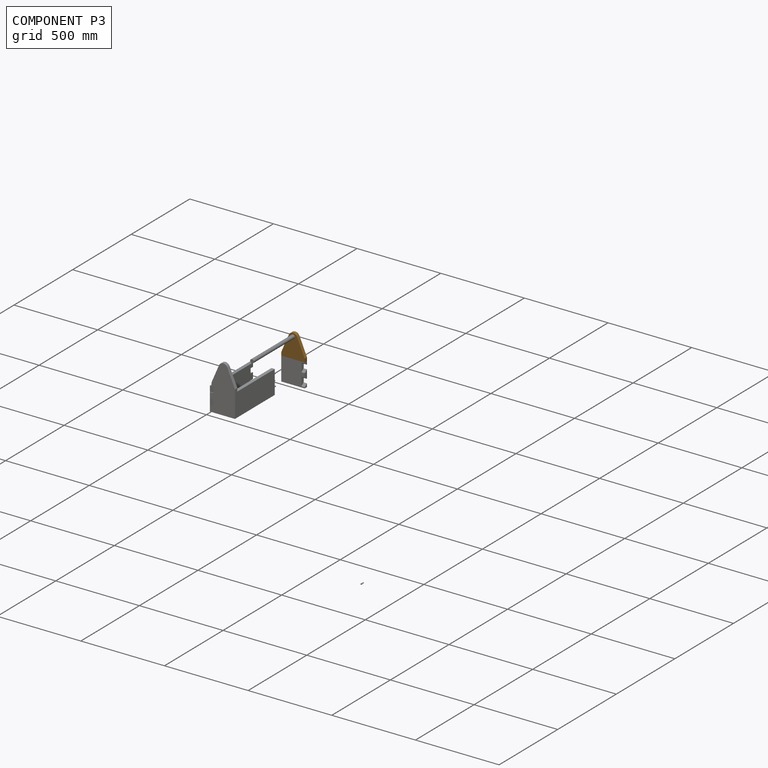
[diagram: component P3 — assembled]
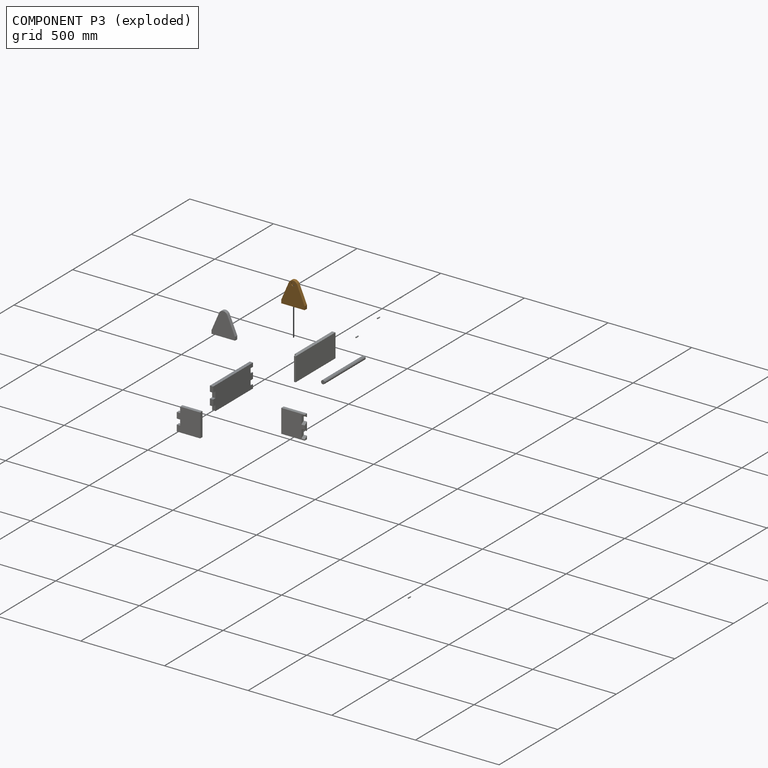
[diagram: component P3 — exploded]
COMPONENT P3 — geometry summary (no construction recipe available for this part):
  bounding box: 141.6 x 140.0 x 20.0 mm
  B-rep topology: 1 solid, 10 faces, 42 edges
  volume: 265570 mm^3 (67% of its bounding box)
  symmetry: mirror-symmetric across its x mid-plane
Held by: FASTENED mate "Fastened 6" to P5; FASTENED mate "Fastened 5" to P10.
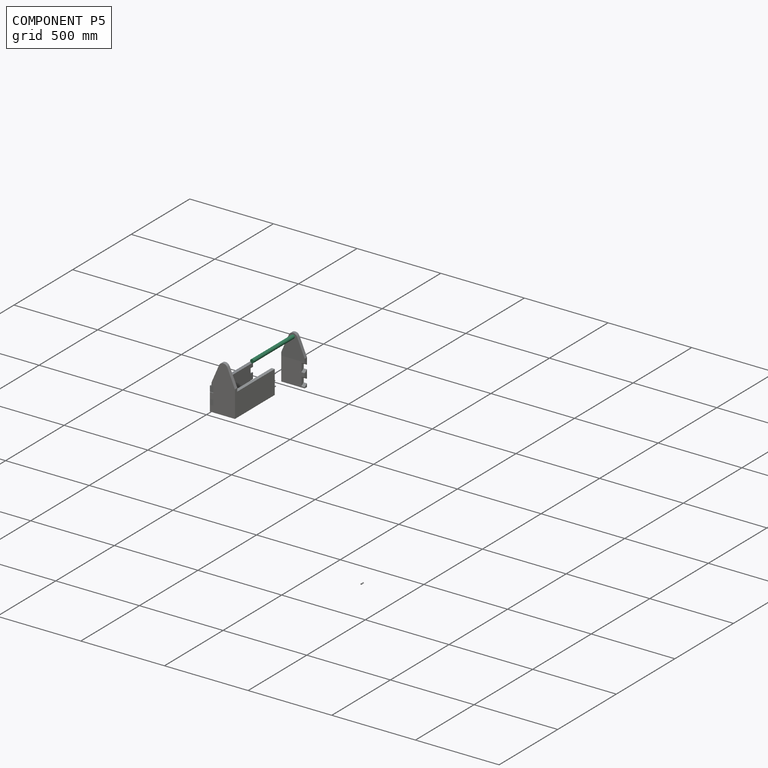
[diagram: component P5 — assembled]
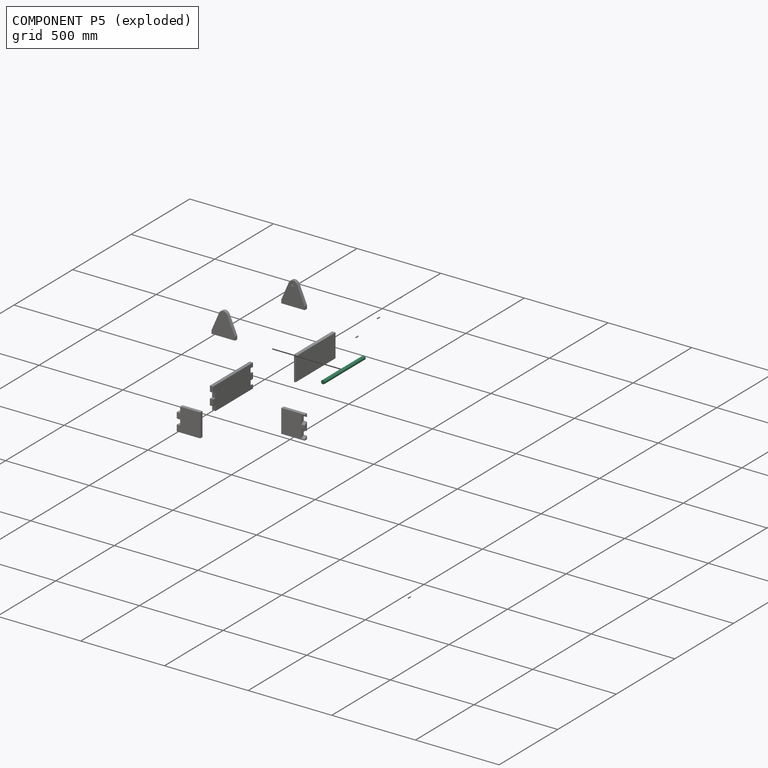
[diagram: component P5 — exploded]
COMPONENT P5 — recipe-attached (CADFS 00567357, mesh-verified: the recipe's output STEP matches this component's geometry to below the mesh-comparison resolution (tessellation chordal tolerance ~0.527 mm)).
Held by: FASTENED mate "Fastened 6" to P3.
Construction recipe (FeatureScript — the CAD program that rebuilds this solid; sketch coordinates are in the units given by the * unit suffixes, e.g. mm):

FeatureScript 1511;
import(path : "onshape/std/geometry.fs", version : "1511.0");
import(path : "onshape/std/common.fs", version : "1511.0");
const mm = millimeter;
const VERTEX = EntityType.VERTEX;
const EDGE = EntityType.EDGE;
const FACE = EntityType.FACE;
const BODY = EntityType.BODY;
function v(x, y){return vector(x, y);}
function OD(order){return orderDisambiguation(order);}
function OSD(set){return originalSetDisambiguation(set);}
function TD(topology){return topologyDisambiguation(topology);}
function TDD(query){return trueDependencyDisambiguation(query);}
function sQuery(a, b, c) {return sketchEntityQuery(a, b, c);}

annotation { "Feature Type Name" : "Feature", "Feature Type Description" : "" }
export const myFeature = defineFeature(function(context is Context, id is Id, definition is map)
    precondition{}
    {
        {
            var Q0;
            Q0=qCreatedBy(makeId("Front.planeOp"),FACE);
            var sketch = newSketch(context, id + "F0", { "sketchPlane" : qUnion([Q0])});
            skCircle(sketch, "E0", {"center": v(1.5, 0) * mm, "radius": 11 * mm});
            skSolve(sketch);
        }
        {
            var Q0;
            Q0 = qSketchRegion(id + "F0", true);
            extrude(context, id + "F1", {"entities" : qUnion([Q0]), "depth" : 350 * mm, "offsetDistance" : 25 * mm});
        }
    });
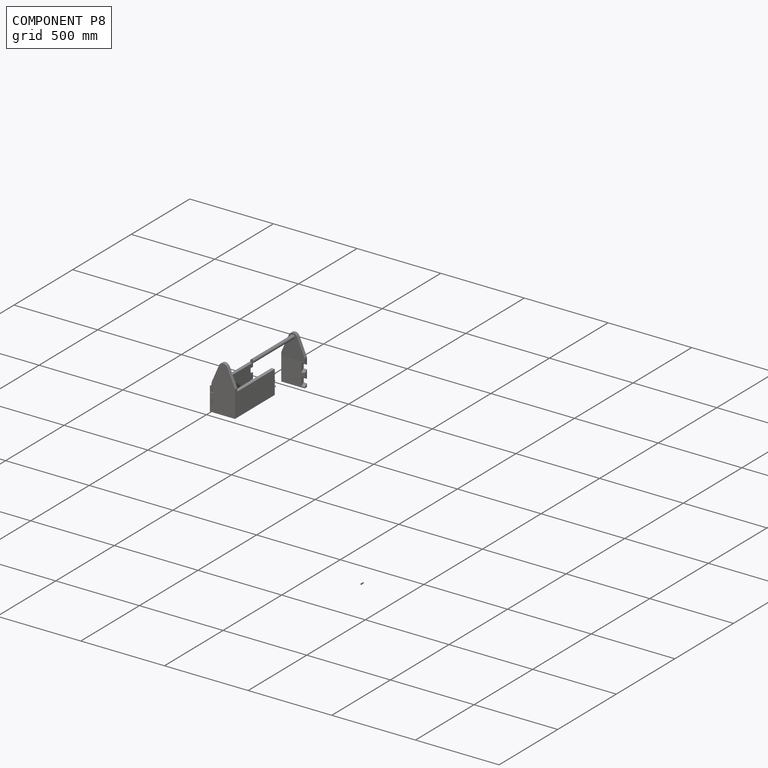
[diagram: component P8 — assembled]
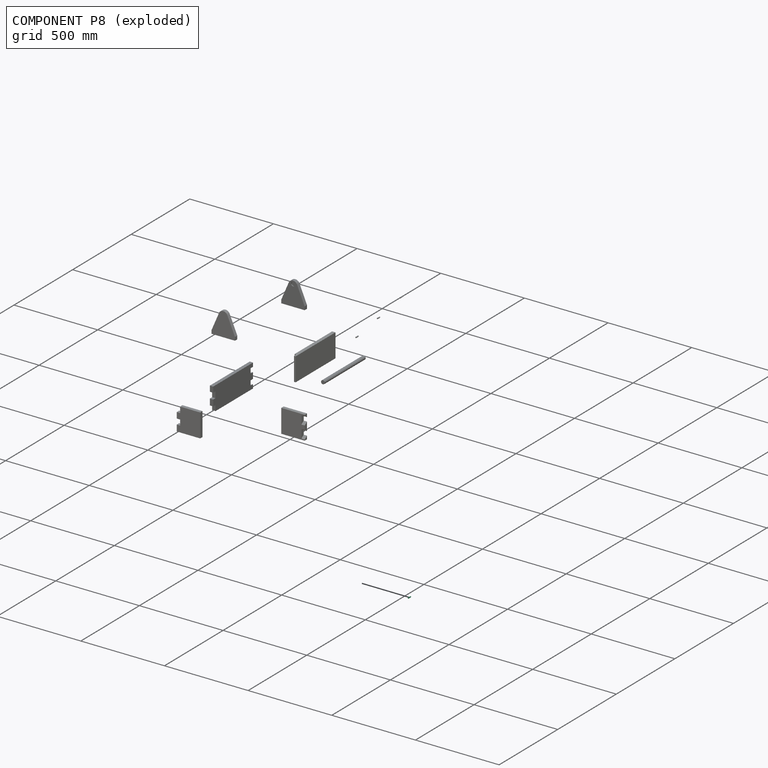
[diagram: component P8 — exploded]
COMPONENT P8 — same part as P6 (CADFS 00567358); its construction recipe is shown at P6.
Held by: no mates (free).
PROVENANCE & LICENSES
Assembly (occurrences, transforms, mates, per-part STEP geometry): AutoMate dataset, Zenodo record 7776208, CC0.
Construction recipes: CADFS (HuggingFace VladPyatov/CADFS, CC-BY-4.0, layered over the ABC dataset), FeatureScript reconstruction programs keyed by ABC model id.
Join: ABC meta listings map ABC model id -> Onshape documentId; within a shared document, parts are matched by geometric signature (bounding-box dims + volume at 0.1% relative tolerance, exact B-rep face/solid counts).
Verification: 9 of this assembly's 11 components carry a recipe attachment, and every attachment is mesh-verified: the CADFS STEP and the AutoMate member STEP were compared as meshes in their shared local frame (symmetric sampled-point-to-mesh distance); worst across the 9 attachments: below the mesh-comparison resolution (tessellation chordal tolerance ~0.552 mm) on a 368 mm part.
Renders: orthographic iso camera (az 35 / el 25); the floor grid conveys scale (grid pitch printed in each image; no ruler). In the exploded view each component is displaced by its stored offset vector: the offsets alone carry the explosion direction (mate normal/axis signs are not orientation cues and do not encode it), and separation distances are assigned per mate-chain, not proportionally to assembly-order depth.
